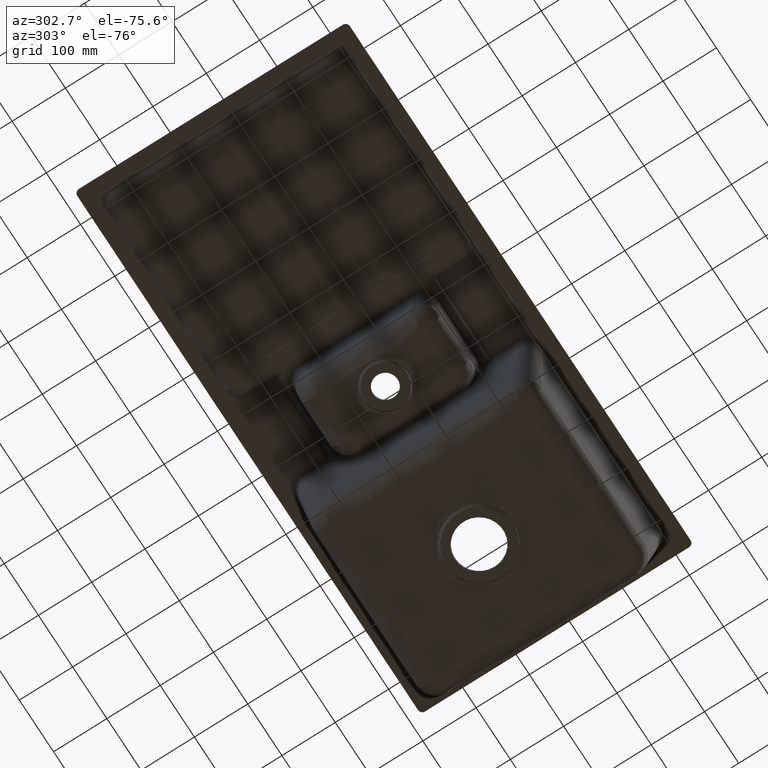
[diagram: clean part render]
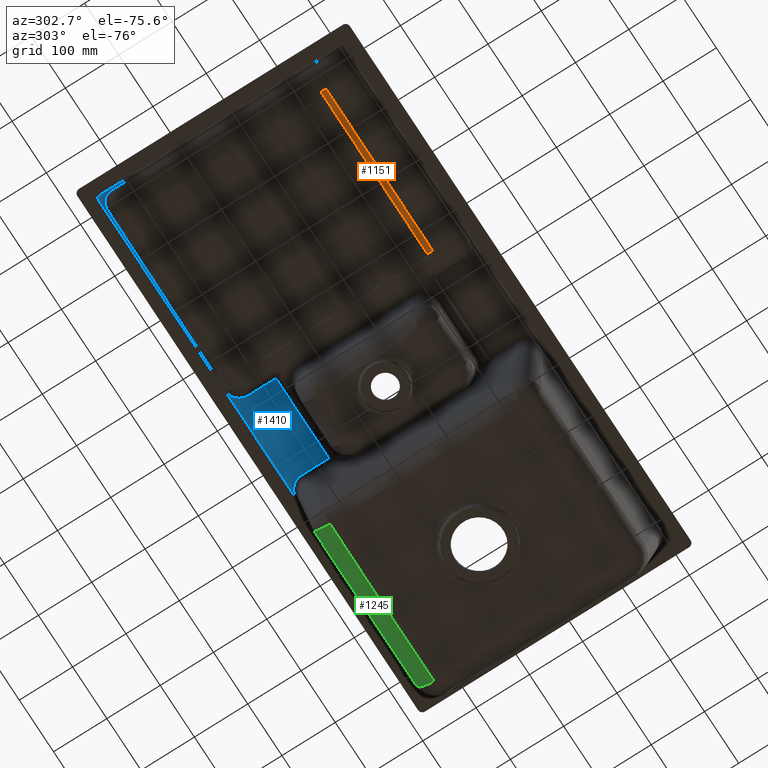
[diagram: same view with three faces highlighted in distinct colors, each labeled with its STEP entity id]
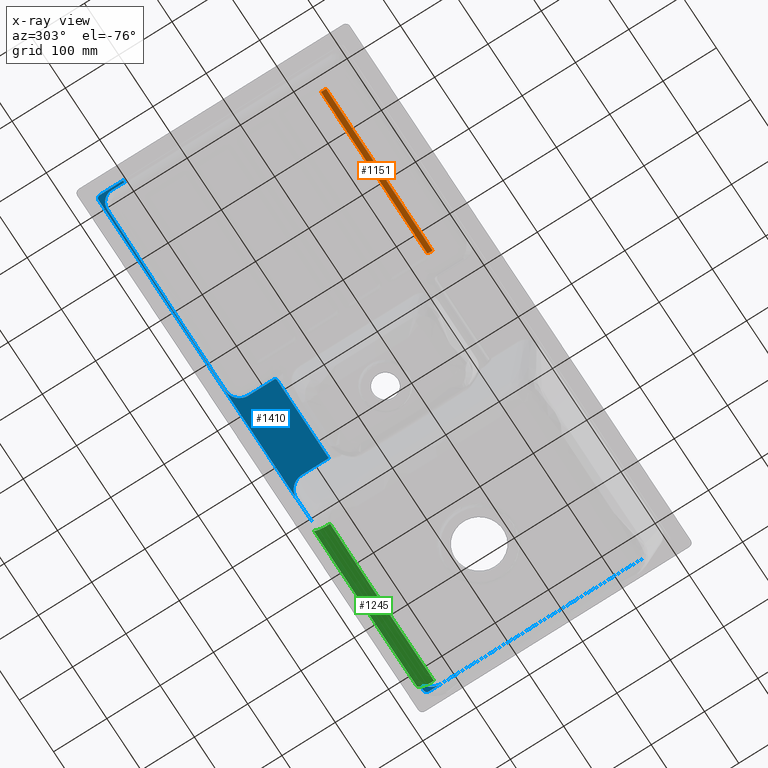
[diagram: x-ray of the same camera — body ghosted, the three highlighted faces saturated]
A machine part, auxiliary view with three faces highlighted in distinct colors.
The next image is the same camera in x-ray (body ghosted, the three faces saturated) — at least one of them is partly hidden behind the body in this view.
Their STEP definitions:

[orange] entity #1151 — the highlighted cylindrical surface (edge-blend (fillet) strip) has radius 21.6 mm, axis along (-0.9997, -0, 0.0227).
#379=FACE_OUTER_BOUND('',#1786,.T.);
#1151=ADVANCED_FACE('',(#379),#1475,.T.);
#1475=CYLINDRICAL_SURFACE('',#6378,21.6);
#1786=EDGE_LOOP('',(#2679,#2680,#2681,#2682));
#2679=ORIENTED_EDGE('',*,*,#4987,.T.);
#2680=ORIENTED_EDGE('',*,*,#4785,.F.);
#2681=ORIENTED_EDGE('',*,*,#4985,.F.);
#2682=ORIENTED_EDGE('',*,*,#4988,.T.);
#4170=VERTEX_POINT('',#9241);
#4171=VERTEX_POINT('',#9270);
#4287=VERTEX_POINT('',#11833);
#4288=VERTEX_POINT('',#11878);
#4785=EDGE_CURVE('',#4170,#4171,#5729,.T.);
#4985=EDGE_CURVE('',#4287,#4170,#5867,.T.);
#4987=EDGE_CURVE('',#4288,#4171,#5869,.T.);
#4988=EDGE_CURVE('',#4287,#4288,#5870,.T.);
#5729=B_SPLINE_CURVE_WITH_KNOTS('',3,(#9271,#9272,#9273,#9274),
 .UNSPECIFIED.,.F.,.F.,(4,4),(0.,1.),.UNSPECIFIED.);
#5867=B_SPLINE_CURVE_WITH_KNOTS('',3,(#11829,#11830,#11831,#11832),
 .UNSPECIFIED.,.F.,.F.,(4,4),(0.,1.),.UNSPECIFIED.);
#5869=B_SPLINE_CURVE_WITH_KNOTS('',3,(#11874,#11875,#11876,#11877),
 .UNSPECIFIED.,.F.,.F.,(4,4),(0.,1.),.UNSPECIFIED.);
#5870=B_SPLINE_CURVE_WITH_KNOTS('',3,(#11879,#11880,#11881,#11882),
 .UNSPECIFIED.,.F.,.F.,(4,4),(0.,1.),.UNSPECIFIED.);
#6378=AXIS2_PLACEMENT_3D('',#11883,#6672,#6673);
#6672=DIRECTION('',(-0.999742609322698,-8.38321196049013E-17,0.0226873335727814));
#6673=DIRECTION('',(-0.0226873335727814,0.,-0.999742609322698));
#9241=CARTESIAN_POINT('',(380.737645721541,94.0123396108543,-28.2993058651331));
#9270=CARTESIAN_POINT('',(69.7376457215418,94.0123396108553,-21.2417285693976));
#9271=CARTESIAN_POINT('',(380.737645721541,94.0123396108553,-28.299305865133));
#9272=CARTESIAN_POINT('',(277.070979054875,94.0123396108553,-25.9467800998879));
#9273=CARTESIAN_POINT('',(173.404312388208,94.0123396108553,-23.5942543346428));
#9274=CARTESIAN_POINT('',(69.7376457215418,94.0123396108553,-21.2417285693978));
#11829=CARTESIAN_POINT('',(380.682377329981,84.0471721683448,-30.7347690637838));
#11830=CARTESIAN_POINT('',(380.682377329981,87.4996916583293,-30.7347690637835));
#11831=CARTESIAN_POINT('',(380.701508858915,90.949202018236,-29.8917169441491));
#11832=CARTESIAN_POINT('',(380.737645721541,94.0123396108539,-28.2993058651326));
#11833=CARTESIAN_POINT('',(380.682377329981,84.0471721683444,-30.7347690637838));
#11874=CARTESIAN_POINT('',(69.682377329981,84.0471721683447,-23.6771917680485));
#11875=CARTESIAN_POINT('',(69.682377329981,87.4996916583298,-23.6771917680485));
#11876=CARTESIAN_POINT('',(69.7015088589156,90.949202018237,-22.8341396484143));
#11877=CARTESIAN_POINT('',(69.7376457215418,94.0123396108553,-21.2417285693977));
#11878=CARTESIAN_POINT('',(69.6823773299811,84.0471721683445,-23.6771917680485));
#11879=CARTESIAN_POINT('',(380.682377329981,84.0471721683447,-30.7347690637838));
#11880=CARTESIAN_POINT('',(277.015710663314,84.0471721683447,-28.3822432985387));
#11881=CARTESIAN_POINT('',(173.349043996648,84.0471721683447,-26.0297175332936));
#11882=CARTESIAN_POINT('',(69.682377329981,84.0471721683447,-23.6771917680485));
#11883=CARTESIAN_POINT('',(60.1043617344349,84.0471721683447,-1.85427511796978));

[blue] entity #1410 — the highlighted planar face has unit normal (0, 0, -1).
#635=FACE_OUTER_BOUND('',#2054,.T.);
#906=(
BOUNDED_CURVE()
B_SPLINE_CURVE(3,(#18507,#18508,#18509,#18510,#18511,#18512,#18513,#18514,
#18515,#18516,#18517,#18518),.UNSPECIFIED.,.F.,.F.)
B_SPLINE_CURVE_WITH_KNOTS((4,2,2,2,2,4),(0.,0.25,0.5,0.625,0.75,1.),
 .UNSPECIFIED.)
CURVE()
GEOMETRIC_REPRESENTATION_ITEM()
RATIONAL_B_SPLINE_CURVE((1.,1.,1.,1.,1.,1.,1.,1.,1.,1.,1.,1.))
REPRESENTATION_ITEM('')
);
#908=(
BOUNDED_CURVE()
B_SPLINE_CURVE(3,(#18559,#18560,#18561,#18562),.UNSPECIFIED.,.F.,.F.)
B_SPLINE_CURVE_WITH_KNOTS((4,4),(0.,1.),.UNSPECIFIED.)
CURVE()
GEOMETRIC_REPRESENTATION_ITEM()
RATIONAL_B_SPLINE_CURVE((1.,1.,1.,1.))
REPRESENTATION_ITEM('')
);
#910=(
BOUNDED_CURVE()
B_SPLINE_CURVE(3,(#18579,#18580,#18581,#18582),.UNSPECIFIED.,.F.,.F.)
B_SPLINE_CURVE_WITH_KNOTS((4,4),(0.,1.),.UNSPECIFIED.)
CURVE()
GEOMETRIC_REPRESENTATION_ITEM()
RATIONAL_B_SPLINE_CURVE((1.,1.,1.,1.))
REPRESENTATION_ITEM('')
);
#912=(
BOUNDED_CURVE()
B_SPLINE_CURVE(3,(#18599,#18600,#18601,#18602,#18603,#18604,#18605,#18606,
#18607,#18608,#18609,#18610),.UNSPECIFIED.,.F.,.F.)
B_SPLINE_CURVE_WITH_KNOTS((4,2,2,2,2,4),(0.,0.25,0.5,0.625,0.75,1.),
 .UNSPECIFIED.)
CURVE()
GEOMETRIC_REPRESENTATION_ITEM()
RATIONAL_B_SPLINE_CURVE((1.,1.,1.,1.,1.,1.,1.,1.,1.,1.,1.,1.))
REPRESENTATION_ITEM('')
);
#915=(
BOUNDED_CURVE()
B_SPLINE_CURVE(3,(#19028,#19029,#19030,#19031),.UNSPECIFIED.,.F.,.F.)
B_SPLINE_CURVE_WITH_KNOTS((4,4),(0.,1.),.UNSPECIFIED.)
CURVE()
GEOMETRIC_REPRESENTATION_ITEM()
RATIONAL_B_SPLINE_CURVE((1.,1.,1.,1.))
REPRESENTATION_ITEM('')
);
#917=(
BOUNDED_CURVE()
B_SPLINE_CURVE(3,(#19058,#19059,#19060,#19061),.UNSPECIFIED.,.F.,.F.)
B_SPLINE_CURVE_WITH_KNOTS((4,4),(0.,1.),.UNSPECIFIED.)
CURVE()
GEOMETRIC_REPRESENTATION_ITEM()
RATIONAL_B_SPLINE_CURVE((1.,1.,1.,1.))
REPRESENTATION_ITEM('')
);
#919=(
BOUNDED_CURVE()
B_SPLINE_CURVE(3,(#19095,#19096,#19097,#19098,#19099,#19100,#19101,#19102,
#19103,#19104,#19105,#19106,#19107,#19108),.UNSPECIFIED.,.F.,.F.)
B_SPLINE_CURVE_WITH_KNOTS((4,2,2,2,2,2,4),(0.,0.25,0.375,0.5,0.625,0.75,
1.),.UNSPECIFIED.)
CURVE()
GEOMETRIC_REPRESENTATION_ITEM()
RATIONAL_B_SPLINE_CURVE((1.,1.,1.,1.,1.,1.,1.,1.,1.,1.,1.,1.,1.,1.))
REPRESENTATION_ITEM('')
);
#921=(
BOUNDED_CURVE()
B_SPLINE_CURVE(3,(#19167,#19168,#19169,#19170,#19171,#19172,#19173,#19174,
#19175,#19176,#19177,#19178,#19179,#19180),.UNSPECIFIED.,.F.,.F.)
B_SPLINE_CURVE_WITH_KNOTS((4,2,2,2,2,2,4),(0.,0.25,0.375,0.5,0.625,0.75,
1.),.UNSPECIFIED.)
CURVE()
GEOMETRIC_REPRESENTATION_ITEM()
RATIONAL_B_SPLINE_CURVE((1.,1.,1.,1.,1.,1.,1.,1.,1.,1.,1.,1.,1.,1.))
REPRESENTATION_ITEM('')
);
#999=PLANE('',#6494);
#1410=ADVANCED_FACE('',(#635),#999,.T.);
#2054=EDGE_LOOP('',(#3865,#3866,#3867,#3868,#3869,#3870,#3871,#3872,#3873,
#3874,#3875,#3876,#3877,#3878,#3879,#3880,#3881,#3882,#3883,#3884,#3885,
#3886,#3887,#3888,#3889,#3890));
#3865=ORIENTED_EDGE('',*,*,#5552,.T.);
#3866=ORIENTED_EDGE('',*,*,#5553,.T.);
#3867=ORIENTED_EDGE('',*,*,#5554,.T.);
#3868=ORIENTED_EDGE('',*,*,#5555,.T.);
#3869=ORIENTED_EDGE('',*,*,#5556,.T.);
#3870=ORIENTED_EDGE('',*,*,#5477,.F.);
#3871=ORIENTED_EDGE('',*,*,#5468,.F.);
#3872=ORIENTED_EDGE('',*,*,#5466,.F.);
#3873=ORIENTED_EDGE('',*,*,#5464,.F.);
#3874=ORIENTED_EDGE('',*,*,#5462,.F.);
#3875=ORIENTED_EDGE('',*,*,#5460,.F.);
#3876=ORIENTED_EDGE('',*,*,#5459,.F.);
#3877=ORIENTED_EDGE('',*,*,#5457,.F.);
#3878=ORIENTED_EDGE('',*,*,#5455,.F.);
#3879=ORIENTED_EDGE('',*,*,#5453,.F.);
#3880=ORIENTED_EDGE('',*,*,#5451,.F.);
#3881=ORIENTED_EDGE('',*,*,#5449,.F.);
#3882=ORIENTED_EDGE('',*,*,#5448,.F.);
#3883=ORIENTED_EDGE('',*,*,#5447,.F.);
#3884=ORIENTED_EDGE('',*,*,#5444,.F.);
#3885=ORIENTED_EDGE('',*,*,#5442,.F.);
#3886=ORIENTED_EDGE('',*,*,#5440,.F.);
#3887=ORIENTED_EDGE('',*,*,#5438,.F.);
#3888=ORIENTED_EDGE('',*,*,#5474,.F.);
#3889=ORIENTED_EDGE('',*,*,#5549,.F.);
#3890=ORIENTED_EDGE('',*,*,#5557,.T.);
#4475=VERTEX_POINT('',#16237);
#4478=VERTEX_POINT('',#16328);
#4484=VERTEX_POINT('',#16818);
#4535=VERTEX_POINT('',#18506);
#4536=VERTEX_POINT('',#18519);
#4537=VERTEX_POINT('',#18563);
#4538=VERTEX_POINT('',#18583);
#4539=VERTEX_POINT('',#18611);
#4540=VERTEX_POINT('',#18655);
#4541=VERTEX_POINT('',#18859);
#4542=VERTEX_POINT('',#19018);
#4543=VERTEX_POINT('',#19027);
#4544=VERTEX_POINT('',#19048);
#4545=VERTEX_POINT('',#19057);
#4546=VERTEX_POINT('',#19085);
#4547=VERTEX_POINT('',#19094);
#4548=VERTEX_POINT('',#19157);
#4549=VERTEX_POINT('',#19166);
#4553=VERTEX_POINT('',#19288);
#4554=VERTEX_POINT('',#19298);
#4592=VERTEX_POINT('',#20482);
#4594=VERTEX_POINT('',#20499);
#4595=VERTEX_POINT('',#20500);
#4596=VERTEX_POINT('',#20505);
#4597=VERTEX_POINT('',#20512);
#4598=VERTEX_POINT('',#20517);
#5438=EDGE_CURVE('',#4535,#4536,#906,.T.);
#5440=EDGE_CURVE('',#4536,#4537,#908,.T.);
#5442=EDGE_CURVE('',#4537,#4538,#910,.T.);
#5444=EDGE_CURVE('',#4538,#4539,#912,.T.);
#5447=EDGE_CURVE('',#4539,#4540,#6171,.T.);
#5448=EDGE_CURVE('',#4540,#4475,#6172,.T.);
#5449=EDGE_CURVE('',#4475,#4478,#6173,.T.);
#5451=EDGE_CURVE('',#4478,#4541,#6175,.T.);
#5453=EDGE_CURVE('',#4541,#4542,#6177,.T.);
#5455=EDGE_CURVE('',#4542,#4543,#915,.T.);
#5457=EDGE_CURVE('',#4543,#4544,#6179,.T.);
#5459=EDGE_CURVE('',#4544,#4545,#917,.T.);
#5460=EDGE_CURVE('',#4545,#4484,#6180,.T.);
#5462=EDGE_CURVE('',#4484,#4546,#6182,.T.);
#5464=EDGE_CURVE('',#4546,#4547,#919,.T.);
#5466=EDGE_CURVE('',#4547,#4548,#6184,.T.);
#5468=EDGE_CURVE('',#4548,#4549,#921,.T.);
#5474=EDGE_CURVE('',#4553,#4535,#6187,.T.);
#5477=EDGE_CURVE('',#4549,#4554,#6190,.T.);
#5549=EDGE_CURVE('',#4592,#4553,#6242,.T.);
#5552=EDGE_CURVE('',#4594,#4595,#6245,.T.);
#5553=EDGE_CURVE('',#4595,#4596,#6246,.T.);
#5554=EDGE_CURVE('',#4596,#4597,#6247,.T.);
#5555=EDGE_CURVE('',#4597,#4598,#6248,.T.);
#5556=EDGE_CURVE('',#4598,#4554,#6249,.T.);
#5557=EDGE_CURVE('',#4592,#4594,#6250,.T.);
#6171=B_SPLINE_CURVE_WITH_KNOTS('',3,(#18656,#18657,#18658,#18659),
 .UNSPECIFIED.,.F.,.F.,(4,4),(0.,1.),.UNSPECIFIED.);
#6172=B_SPLINE_CURVE_WITH_KNOTS('',3,(#18661,#18662,#18663,#18664,#18665,
#18666),.UNSPECIFIED.,.F.,.F.,(4,2,4),(0.,0.5,1.),.UNSPECIFIED.);
#6173=B_SPLINE_CURVE_WITH_KNOTS('',3,(#18799,#18800,#18801,#18802,#18803,
#18804,#18805,#18806),.UNSPECIFIED.,.F.,.F.,(4,2,2,4),(0.,0.499531666610808,
0.752941051288972,1.),.UNSPECIFIED.);
#6175=B_SPLINE_CURVE_WITH_KNOTS('',3,(#18860,#18861,#18862,#18863,#18864,
#18865,#18866,#18867,#18868,#18869,#18870,#18871,#18872,#18873,#18874,#18875,
#18876,#18877,#18878,#18879,#18880,#18881),.UNSPECIFIED.,.F.,.F.,(4,2,2,
2,2,2,2,2,2,2,4),(0.,0.00981383962672618,0.0256285147998721,0.057257865146164,
0.120516565838748,0.247033967223915,0.373551368609083,0.50006876999425,
0.753103572764585,0.879620974149753,1.),.UNSPECIFIED.);
#6177=B_SPLINE_CURVE_WITH_KNOTS('',3,(#19019,#19020,#19021,#19022),
 .UNSPECIFIED.,.F.,.F.,(4,4),(0.,1.),.UNSPECIFIED.);
#6179=B_SPLINE_CURVE_WITH_KNOTS('',3,(#19049,#19050,#19051,#19052),
 .UNSPECIFIED.,.F.,.F.,(4,4),(0.,1.),.UNSPECIFIED.);
#6180=B_SPLINE_CURVE_WITH_KNOTS('',3,(#19074,#19075,#19076,#19077),
 .UNSPECIFIED.,.F.,.F.,(4,4),(0.,1.),.UNSPECIFIED.);
#6182=B_SPLINE_CURVE_WITH_KNOTS('',3,(#19086,#19087,#19088,#19089),
 .UNSPECIFIED.,.F.,.F.,(4,4),(0.,1.),.UNSPECIFIED.);
#6184=B_SPLINE_CURVE_WITH_KNOTS('',3,(#19158,#19159,#19160,#19161),
 .UNSPECIFIED.,.F.,.F.,(4,4),(0.,1.),.UNSPECIFIED.);
#6187=B_SPLINE_CURVE_WITH_KNOTS('',3,(#19289,#19290,#19291,#19292),
 .UNSPECIFIED.,.F.,.F.,(4,4),(0.,1.),.UNSPECIFIED.);
#6190=B_SPLINE_CURVE_WITH_KNOTS('',3,(#19306,#19307,#19308,#19309),
 .UNSPECIFIED.,.F.,.F.,(4,4),(0.,1.),.UNSPECIFIED.);
#6242=B_SPLINE_CURVE_WITH_KNOTS('',3,(#20478,#20479,#20480,#20481),
 .UNSPECIFIED.,.F.,.F.,(4,4),(0.,1.),.UNSPECIFIED.);
#6245=B_SPLINE_CURVE_WITH_KNOTS('',3,(#20493,#20494,#20495,#20496,#20497,
#20498),.UNSPECIFIED.,.F.,.F.,(4,2,4),(0.,0.5,1.),.UNSPECIFIED.);
#6246=B_SPLINE_CURVE_WITH_KNOTS('',3,(#20501,#20502,#20503,#20504),
 .UNSPECIFIED.,.F.,.F.,(4,4),(0.,1.),.UNSPECIFIED.);
#6247=B_SPLINE_CURVE_WITH_KNOTS('',3,(#20506,#20507,#20508,#20509,#20510,
#20511),.UNSPECIFIED.,.F.,.F.,(4,2,4),(0.,0.5,1.),.UNSPECIFIED.);
#6248=B_SPLINE_CURVE_WITH_KNOTS('',3,(#20513,#20514,#20515,#20516),
 .UNSPECIFIED.,.F.,.F.,(4,4),(0.,1.),.UNSPECIFIED.);
#6249=B_SPLINE_CURVE_WITH_KNOTS('',3,(#20518,#20519,#20520,#20521),
 .UNSPECIFIED.,.F.,.F.,(4,4),(0.,1.),.UNSPECIFIED.);
#6250=B_SPLINE_CURVE_WITH_KNOTS('',3,(#20522,#20523,#20524,#20525),
 .UNSPECIFIED.,.F.,.F.,(4,4),(0.,1.),.UNSPECIFIED.);
#6494=AXIS2_PLACEMENT_3D('',#20526,#6904,#6905);
#6904=DIRECTION('',(0.,0.,-1.));
#6905=DIRECTION('',(1.,0.,0.));
#16237=CARTESIAN_POINT('',(426.996936650795,407.59692249292,-14.0000004603992));
#16328=CARTESIAN_POINT('',(427.250875773407,407.428179293239,-14.0000004895497));
#16818=CARTESIAN_POINT('',(580.422370041704,406.968279679282,-14.));
#18506=CARTESIAN_POINT('',(27.7921375442032,459.399144826488,-14.));
#18507=CARTESIAN_POINT('',(27.792137544203,459.399144826488,-14.));
#18508=CARTESIAN_POINT('',(27.7921375458228,462.391913961438,-14.));
#18509=CARTESIAN_POINT('',(28.3887031620947,465.382884747067,-14.));
#18510=CARTESIAN_POINT('',(30.6424925174326,470.855142818542,-14.));
#18511=CARTESIAN_POINT('',(32.3261107624654,473.393509504945,-14.));
#18512=CARTESIAN_POINT('',(35.4596181334744,476.549368907805,-14.));
#18513=CARTESIAN_POINT('',(36.6255569380276,477.513260030559,-14.));
#18514=CARTESIAN_POINT('',(39.086877408762,479.170503021697,-14.));
#18515=CARTESIAN_POINT('',(40.3884671807572,479.873817932367,-14.));
#18516=CARTESIAN_POINT('',(44.508116327804,481.604148485478,-14.));
#18517=CARTESIAN_POINT('',(47.4751360363725,482.211145754198,-14.));
#18518=CARTESIAN_POINT('',(50.4485053148178,482.234489919863,-14.));
#18519=CARTESIAN_POINT('',(50.4485053148177,482.234489919863,-14.));
#18559=CARTESIAN_POINT('',(50.4485053148176,482.234489919863,-14.));
#18560=CARTESIAN_POINT('',(129.270090317085,482.853324615719,-14.));
#18561=CARTESIAN_POINT('',(208.091726374771,483.466090229834,-14.));
#18562=CARTESIAN_POINT('',(286.912971778672,484.127368384841,-14.));
#18563=CARTESIAN_POINT('',(286.912971778671,484.127368384841,-14.));
#18579=CARTESIAN_POINT('',(286.91297177867,484.127368384841,-14.));
#18580=CARTESIAN_POINT('',(323.367026040415,484.433203065003,-14.));
#18581=CARTESIAN_POINT('',(361.171065995138,484.695647545562,-13.9999999999993));
#18582=CARTESIAN_POINT('',(400.044137417339,484.909341763988,-14.));
#18583=CARTESIAN_POINT('',(400.044137417338,484.909341763988,-14.));
#18599=CARTESIAN_POINT('',(400.044137417338,484.909341763988,-14.));
#18600=CARTESIAN_POINT('',(403.439895631852,484.928009027515,-14.));
#18601=CARTESIAN_POINT('',(406.847631313913,484.25901643297,-14.));
#18602=CARTESIAN_POINT('',(413.068569061348,481.705603166345,-14.));
#18603=CARTESIAN_POINT('',(415.954241098094,479.790119018903,-14.));
#18604=CARTESIAN_POINT('',(419.534136595772,476.226451362713,-14.));
#18605=CARTESIAN_POINT('',(420.626894855622,474.900072168602,-14.));
#18606=CARTESIAN_POINT('',(422.504751471745,472.096717998548,-14.));
#18607=CARTESIAN_POINT('',(423.299457694204,470.615113097837,-14.));
#18608=CARTESIAN_POINT('',(425.247411699899,465.928576134585,-14.));
#18609=CARTESIAN_POINT('',(425.920583684488,462.548430763765,-14.));
#18610=CARTESIAN_POINT('',(425.920583685519,459.170706450066,-14.));
#18611=CARTESIAN_POINT('',(425.920583685519,459.170706450066,-14.));
#18655=CARTESIAN_POINT('',(425.920300896191,410.663310951617,-14.0000008786424));
#18656=CARTESIAN_POINT('',(425.920583685519,459.170706450066,-14.));
#18657=CARTESIAN_POINT('',(425.920583685519,443.00152992862,-14.));
#18658=CARTESIAN_POINT('',(425.920583685519,426.832353407174,-14.));
#18659=CARTESIAN_POINT('',(425.920583685519,410.663176885728,-14.));
#18661=CARTESIAN_POINT('',(425.920018476412,410.663176885797,-14.0000028161692));
#18662=CARTESIAN_POINT('',(425.920903575424,410.097489288354,-14.0000028136558));
#18663=CARTESIAN_POINT('',(425.956040746824,409.53462896446,-14.0000028019535));
#18664=CARTESIAN_POINT('',(426.225622151102,408.431143945238,-14.0000018209474));
#18665=CARTESIAN_POINT('',(426.547115479204,407.943068410148,-14.0000017570889));
#18666=CARTESIAN_POINT('',(426.996936650914,407.59692249316,-14.0000018416023));
#18799=CARTESIAN_POINT('',(426.996936735057,407.59692260797,-14.));
#18800=CARTESIAN_POINT('',(427.037914597177,407.566916788034,-14.));
#18801=CARTESIAN_POINT('',(427.079339981285,407.537509767668,-14.));
#18802=CARTESIAN_POINT('',(427.143115503641,407.495169453265,-14.));
#18803=CARTESIAN_POINT('',(427.164765883289,407.481191056454,-14.));
#18804=CARTESIAN_POINT('',(427.207884839121,407.454175286661,-14.));
#18805=CARTESIAN_POINT('',(427.22931370047,407.441069161435,-14.));
#18806=CARTESIAN_POINT('',(427.250875773365,407.42817929316,-14.));
#18859=CARTESIAN_POINT('',(429.636772806419,406.9679067702,-14.0000009781584));
#18860=CARTESIAN_POINT('',(427.250874077834,407.42817641157,-14.0000019588262));
#18861=CARTESIAN_POINT('',(427.257829114779,407.424084081307,-14.0000019599657));
#18862=CARTESIAN_POINT('',(427.264784309217,407.419992023541,-14.0000019609416));
#18863=CARTESIAN_POINT('',(427.282931823525,407.409278795213,-14.0000019624375));
#18864=CARTESIAN_POINT('',(427.294103954252,407.402622869615,-14.0000019681936));
#18865=CARTESIAN_POINT('',(427.327963006188,407.383242303595,-14.0000019871869));
#18866=CARTESIAN_POINT('',(427.350742068923,407.370675725714,-14.0000019944093));
#18867=CARTESIAN_POINT('',(427.41963036361,407.333920132642,-14.0000020276293));
#18868=CARTESIAN_POINT('',(427.466348854101,407.310877603267,-14.000002053545));
#18869=CARTESIAN_POINT('',(427.607753765969,407.246548428449,-14.0000021365287));
#18870=CARTESIAN_POINT('',(427.704058743811,407.209789637096,-14.0000022014998));
#18871=CARTESIAN_POINT('',(427.900649350624,407.148257421425,-14.0000023522364));
#18872=CARTESIAN_POINT('',(428.001335914734,407.124690905985,-14.0000024564244));
#18873=CARTESIAN_POINT('',(428.205154249318,407.084922023843,-14.0000025758866));
#18874=CARTESIAN_POINT('',(428.307599535786,407.067601472562,-14.0000026226721));
#18875=CARTESIAN_POINT('',(428.615565303385,407.022298983051,-14.0000027567785));
#18876=CARTESIAN_POINT('',(428.822297329569,407.001044302842,-14.0000028240964));
#18877=CARTESIAN_POINT('',(429.133065388244,406.980401603916,-14.0000028908237));
#18878=CARTESIAN_POINT('',(429.236731574744,406.975402525112,-14.0000029074048));
#18879=CARTESIAN_POINT('',(429.43917336728,406.969053725591,-14.0000029288181));
#18880=CARTESIAN_POINT('',(429.537947717763,406.967671237532,-14.0000029337889));
#18881=CARTESIAN_POINT('',(429.636772740932,406.967533863957,-14.0000029344568));
#19018=CARTESIAN_POINT('',(446.789472390778,406.968279679282,-14.));
#19019=CARTESIAN_POINT('',(429.636772853089,406.968279679282,-14.));
#19020=CARTESIAN_POINT('',(435.354339365652,406.968279679282,-14.));
#19021=CARTESIAN_POINT('',(441.071905878215,406.968279679282,-14.));
#19022=CARTESIAN_POINT('',(446.789472390778,406.968279679282,-14.));
#19027=CARTESIAN_POINT('',(451.992879876291,406.971441294365,-14.));
#19028=CARTESIAN_POINT('',(446.789472390778,406.968279679282,-14.));
#19029=CARTESIAN_POINT('',(448.523942052848,406.968279679475,-14.));
#19030=CARTESIAN_POINT('',(450.25840993324,406.971441294509,-14.));
#19031=CARTESIAN_POINT('',(451.992879876291,406.971441294365,-14.));
#19048=CARTESIAN_POINT('',(566.007120123152,406.971441294365,-14.));
#19049=CARTESIAN_POINT('',(451.992879876291,406.971441294365,-14.));
#19050=CARTESIAN_POINT('',(489.997626625245,406.971441294365,-14.));
#19051=CARTESIAN_POINT('',(528.002373374198,406.971441294365,-14.));
#19052=CARTESIAN_POINT('',(566.007120123152,406.971441294365,-14.));
#19057=CARTESIAN_POINT('',(571.210527608794,406.968279679282,-14.));
#19058=CARTESIAN_POINT('',(566.007120123152,406.971441294365,-14.));
#19059=CARTESIAN_POINT('',(567.741590066245,406.971441294365,-14.));
#19060=CARTESIAN_POINT('',(569.476057946682,406.968279679667,-14.));
#19061=CARTESIAN_POINT('',(571.210527608794,406.968279679282,-14.));
#19074=CARTESIAN_POINT('',(571.210527608794,406.968279679282,-14.));
#19075=CARTESIAN_POINT('',(574.281141753097,406.968279679282,-14.));
#19076=CARTESIAN_POINT('',(577.351755897401,406.968279679282,-14.));
#19077=CARTESIAN_POINT('',(580.422370041704,406.968279679282,-14.));
#19085=CARTESIAN_POINT('',(580.422370041704,457.553066531176,-14.));
#19086=CARTESIAN_POINT('',(580.422370041704,406.968279679282,-14.));
#19087=CARTESIAN_POINT('',(580.422370041704,423.82987529658,-14.));
#19088=CARTESIAN_POINT('',(580.422370041704,440.691470913878,-14.));
#19089=CARTESIAN_POINT('',(580.422370041704,457.553066531176,-14.));
#19094=CARTESIAN_POINT('',(608.446933468824,485.577629958296,-14.));
#19095=CARTESIAN_POINT('',(580.422370041704,457.553066531176,-14.0000000000001));
#19096=CARTESIAN_POINT('',(580.422370041909,461.24247078844,-14.0000000000001));
#19097=CARTESIAN_POINT('',(581.151604579828,464.940250245784,-14.));
#19098=CARTESIAN_POINT('',(583.235730360213,470.00793044533,-14.));
#19099=CARTESIAN_POINT('',(584.103599809602,471.64361533929,-14.));
#19100=CARTESIAN_POINT('',(586.147603395433,474.71031366969,-14.));
#19101=CARTESIAN_POINT('',(587.306992247224,476.12237521049,-13.9999999999997));
#19102=CARTESIAN_POINT('',(589.895333298353,478.708523204888,-13.9999999999997));
#19103=CARTESIAN_POINT('',(591.341108865842,479.890763650287,-14.));
#19104=CARTESIAN_POINT('',(594.39227989923,481.916112927919,-14.));
#19105=CARTESIAN_POINT('',(596.005150032348,482.771505579762,-14.));
#19106=CARTESIAN_POINT('',(601.106668469317,484.863937977332,-14.));
#19107=CARTESIAN_POINT('',(604.777945704616,485.577629958296,-14.));
#19108=CARTESIAN_POINT('',(608.446933468824,485.577629958296,-14.));
#19157=CARTESIAN_POINT('',(957.553066517147,485.577629958296,-14.));
#19158=CARTESIAN_POINT('',(608.446933468824,485.577629958296,-14.));
#19159=CARTESIAN_POINT('',(724.815644484932,485.577629958296,-14.));
#19160=CARTESIAN_POINT('',(841.184355501039,485.577629958296,-14.));
#19161=CARTESIAN_POINT('',(957.553066517147,485.577629958296,-14.));
#19166=CARTESIAN_POINT('',(985.577629958296,457.553066517148,-14.));
#19167=CARTESIAN_POINT('',(957.553066517147,485.577629958296,-14.));
#19168=CARTESIAN_POINT('',(961.242470776568,485.577629957989,-14.));
#19169=CARTESIAN_POINT('',(964.940250235168,484.848395419352,-14.));
#19170=CARTESIAN_POINT('',(970.007930437942,482.764269638954,-14.));
#19171=CARTESIAN_POINT('',(971.643615332819,481.896400188897,-14.));
#19172=CARTESIAN_POINT('',(974.710313664363,479.85239660203,-14.));
#19173=CARTESIAN_POINT('',(976.122375206575,478.693007749748,-14.));
#19174=CARTESIAN_POINT('',(978.708523201388,476.104666697189,-14.));
#19175=CARTESIAN_POINT('',(979.890763647797,474.658891128864,-13.9999999999999));
#19176=CARTESIAN_POINT('',(981.916112926448,471.607720094145,-13.9999999999999));
#19177=CARTESIAN_POINT('',(982.77150557833,469.994849960033,-14.0000000000001));
#19178=CARTESIAN_POINT('',(984.863937977738,464.893331520452,-14.0000000000001));
#19179=CARTESIAN_POINT('',(985.577629957482,461.222054283191,-13.9999999999999));
#19180=CARTESIAN_POINT('',(985.577629958296,457.553066517147,-13.9999999999999));
#19288=CARTESIAN_POINT('',(27.7921375442033,435.699268119435,-14.));
#19289=CARTESIAN_POINT('',(27.7921375442033,435.699268119435,-14.));
#19290=CARTESIAN_POINT('',(27.7921375442033,443.599227021786,-14.));
#19291=CARTESIAN_POINT('',(27.7921375442033,451.499185924137,-14.));
#19292=CARTESIAN_POINT('',(27.7921375442033,459.399144826488,-14.));
#19298=CARTESIAN_POINT('',(985.577629958296,74.300731880565,-14.));
#19306=CARTESIAN_POINT('',(985.577629958296,457.553066517148,-14.));
#19307=CARTESIAN_POINT('',(985.577629958296,329.802288304954,-14.));
#19308=CARTESIAN_POINT('',(985.577629958296,202.051510092759,-14.));
#19309=CARTESIAN_POINT('',(985.577629958296,74.300731880565,-14.));
#20478=CARTESIAN_POINT('',(24.3007318805649,435.699268119435,-14.));
#20479=CARTESIAN_POINT('',(25.4645337684444,435.699268119435,-14.));
#20480=CARTESIAN_POINT('',(26.6283356563238,435.699268119435,-14.));
#20481=CARTESIAN_POINT('',(27.7921375442033,435.699268119435,-14.));
#20482=CARTESIAN_POINT('',(24.3007318805649,435.699268119435,-14.));
#20493=CARTESIAN_POINT('',(24.3007318805649,479.699268119435,-14.));
#20494=CARTESIAN_POINT('',(24.3007318805649,481.291227191001,-14.));
#20495=CARTESIAN_POINT('',(24.9335927755019,482.817767501257,-14.));
#20496=CARTESIAN_POINT('',(27.1825896113893,485.066050111852,-14.));
#20497=CARTESIAN_POINT('',(28.7100935803368,485.699268119435,-14.));
#20498=CARTESIAN_POINT('',(30.3007318805649,485.699268119435,-14.));
#20499=CARTESIAN_POINT('',(24.3007318805649,479.699268119435,-14.));
#20500=CARTESIAN_POINT('',(30.3007318805649,485.699268119435,-14.));
#20501=CARTESIAN_POINT('',(30.3007318805649,485.699268119435,-14.));
#20502=CARTESIAN_POINT('',(346.766910626855,485.699268119435,-14.));
#20503=CARTESIAN_POINT('',(663.233089373145,485.699268119435,-14.));
#20504=CARTESIAN_POINT('',(979.699268119435,485.699268119435,-14.));
#20505=CARTESIAN_POINT('',(979.699268119435,485.699268119435,-14.));
#20506=CARTESIAN_POINT('',(979.699268119435,485.699268119435,-14.));
#20507=CARTESIAN_POINT('',(981.291227190843,485.699268119435,-14.));
#20508=CARTESIAN_POINT('',(982.817767501224,485.066407224577,-14.));
#20509=CARTESIAN_POINT('',(985.066050111885,482.817410388531,-14.));
#20510=CARTESIAN_POINT('',(985.699268119435,481.28990641971,-14.));
#20511=CARTESIAN_POINT('',(985.699268119435,479.699268119435,-14.));
#20512=CARTESIAN_POINT('',(985.699268119435,479.699268119435,-14.));
#20513=CARTESIAN_POINT('',(985.699268119435,479.699268119435,-14.));
#20514=CARTESIAN_POINT('',(985.699268119435,344.566422706478,-14.));
#20515=CARTESIAN_POINT('',(985.699268119435,209.433577293522,-14.));
#20516=CARTESIAN_POINT('',(985.699268119435,74.300731880565,-14.));
#20517=CARTESIAN_POINT('',(985.699268119435,74.300731880565,-14.));
#20518=CARTESIAN_POINT('',(985.699268119435,74.300731880565,-14.));
#20519=CARTESIAN_POINT('',(985.658722065722,74.300731880565,-14.));
#20520=CARTESIAN_POINT('',(985.618176012009,74.300731880565,-14.));
#20521=CARTESIAN_POINT('',(985.577629958296,74.300731880565,-14.));
#20522=CARTESIAN_POINT('',(24.3007318805649,435.699268119435,-14.));
#20523=CARTESIAN_POINT('',(24.3007318805649,450.365934786102,-14.));
#20524=CARTESIAN_POINT('',(24.3007318805649,465.032601452768,-14.));
#20525=CARTESIAN_POINT('',(24.3007318805649,479.699268119435,-14.));
#20526=CARTESIAN_POINT('',(985.699268119435,485.699268119435,-14.));

[green] entity #1245 — the highlighted face is a freeform B-spline surface patch.
#190=(
BOUNDED_SURFACE()
B_SPLINE_SURFACE(3,2,((#14500,#14501,#14502),(#14503,#14504,#14505),(#14506,
#14507,#14508),(#14509,#14510,#14511),(#14512,#14513,#14514),(#14515,#14516,
#14517),(#14518,#14519,#14520),(#14521,#14522,#14523),(#14524,#14525,#14526),
(#14527,#14528,#14529)),.UNSPECIFIED.,.F.,.F.,.F.)
B_SPLINE_SURFACE_WITH_KNOTS((4,2,2,2,4),(3,3),(0.,0.25,0.5,0.75,1.),(0.,
1.),.UNSPECIFIED.)
GEOMETRIC_REPRESENTATION_ITEM()
RATIONAL_B_SPLINE_SURFACE(((1.,0.755079431376986,1.),(1.,0.756272042316288,
1.),(1.,0.757590618480473,1.),(1.,0.759683862438646,1.),(1.,0.760406461323854,
1.),(1.,0.76040546932212,1.),(1.,0.759682122572023,1.),(1.,0.757589583954994,
1.),(1.,0.756271899995807,1.),(1.,0.755079431384055,1.)))
REPRESENTATION_ITEM('')
SURFACE()
);
#472=FACE_OUTER_BOUND('',#1881,.T.);
#833=(
BOUNDED_CURVE()
B_SPLINE_CURVE(2,(#14486,#14487,#14488),.UNSPECIFIED.,.F.,.F.)
B_SPLINE_CURVE_WITH_KNOTS((3,3),(0.,1.),.UNSPECIFIED.)
CURVE()
GEOMETRIC_REPRESENTATION_ITEM()
RATIONAL_B_SPLINE_CURVE((1.,0.755079431384055,1.))
REPRESENTATION_ITEM('')
);
#834=(
BOUNDED_CURVE()
B_SPLINE_CURVE(3,(#14490,#14491,#14492,#14493,#14494,#14495,#14496,#14497,
#14498,#14499),.UNSPECIFIED.,.F.,.F.)
B_SPLINE_CURVE_WITH_KNOTS((4,2,2,2,4),(0.,0.25,0.5,0.75,1.),
 .UNSPECIFIED.)
CURVE()
GEOMETRIC_REPRESENTATION_ITEM()
RATIONAL_B_SPLINE_CURVE((1.,1.,1.,1.,1.,1.,1.,1.,1.,1.))
REPRESENTATION_ITEM('')
);
#1245=ADVANCED_FACE('',(#472),#190,.F.);
#1881=EDGE_LOOP('',(#3058,#3059,#3060,#3061));
#3058=ORIENTED_EDGE('',*,*,#5187,.T.);
#3059=ORIENTED_EDGE('',*,*,#4941,.F.);
#3060=ORIENTED_EDGE('',*,*,#5184,.F.);
#3061=ORIENTED_EDGE('',*,*,#5188,.T.);
#4258=VERTEX_POINT('',#11009);
#4259=VERTEX_POINT('',#11050);
#4393=VERTEX_POINT('',#14410);
#4395=VERTEX_POINT('',#14489);
#4941=EDGE_CURVE('',#4258,#4259,#5829,.T.);
#5184=EDGE_CURVE('',#4393,#4258,#5990,.T.);
#5187=EDGE_CURVE('',#4395,#4259,#833,.T.);
#5188=EDGE_CURVE('',#4393,#4395,#834,.T.);
#5829=B_SPLINE_CURVE_WITH_KNOTS('',3,(#11010,#11011,#11012,#11013,#11014,
#11015,#11016,#11017,#11018,#11019,#11020,#11021,#11022,#11023,#11024,#11025,
#11026,#11027,#11028,#11029,#11030,#11031,#11032,#11033,#11034,#11035,#11036,
#11037,#11038,#11039,#11040,#11041,#11042,#11043,#11044,#11045,#11046,#11047,
#11048,#11049),.UNSPECIFIED.,.F.,.F.,(4,2,2,2,2,2,2,2,2,2,2,2,2,2,2,2,2,
2,2,4),(0.,0.249999999999986,0.257812499999985,0.265624999999985,0.281249999999984,
0.312499999999983,0.374999999999981,0.40624999999998,0.437499999999979,
0.499999999999978,0.624999999999975,0.656249999999975,0.687499999999975,
0.749999999999973,0.757812499999973,0.765624999999973,0.781249999999974,
0.812499999999979,0.874999999999986,1.),.UNSPECIFIED.);
#5990=B_SPLINE_CURVE_WITH_KNOTS('',3,(#14400,#14401,#14402,#14403,#14404,
#14405,#14406,#14407,#14408,#14409),.UNSPECIFIED.,.F.,.F.,(4,2,2,2,4),(0.,
0.25,0.5,0.75,1.),.UNSPECIFIED.);
#11009=CARTESIAN_POINT('',(631.026667273857,437.05151124792,-201.856649867801));
#11010=CARTESIAN_POINT('',(631.026667273857,437.05151124792,-201.856649867801));
#11011=CARTESIAN_POINT('',(657.985594691334,437.078697415351,-203.06327215802));
#11012=CARTESIAN_POINT('',(682.879899256904,437.133506036476,-203.990018741668));
#11013=CARTESIAN_POINT('',(707.77637534852,437.18045970259,-204.657104333653));
#11014=CARTESIAN_POINT('',(708.631798790823,437.182020662731,-204.679734032075));
#11015=CARTESIAN_POINT('',(710.237844585794,437.184868002673,-204.721599354478));
#11016=CARTESIAN_POINT('',(711.039622207107,437.186250865109,-204.742205652038));
#11017=CARTESIAN_POINT('',(713.441466040728,437.190314320705,-204.80304545379));
#11018=CARTESIAN_POINT('',(715.038041482841,437.192911570827,-204.842299867056));
#11019=CARTESIAN_POINT('',(719.81584412708,437.200605067519,-204.956146743148));
#11020=CARTESIAN_POINT('',(722.985121139699,437.205636467854,-205.026822842269));
#11021=CARTESIAN_POINT('',(732.462460640225,437.221227479253,-205.223185684805));
#11022=CARTESIAN_POINT('',(738.739672986963,437.232975851818,-205.333206973397));
#11023=CARTESIAN_POINT('',(748.170228205401,437.244927336703,-205.466907996638));
#11024=CARTESIAN_POINT('',(751.405748973813,437.247370522231,-205.507370001675));
#11025=CARTESIAN_POINT('',(757.744538822296,437.251672268878,-205.575379430947));
#11026=CARTESIAN_POINT('',(760.903119487766,437.253604871534,-205.603710951079));
#11027=CARTESIAN_POINT('',(770.370643621938,437.260199873054,-205.671685927965));
#11028=CARTESIAN_POINT('',(776.671288291094,437.266751350728,-205.694309801207));
#11029=CARTESIAN_POINT('',(795.739930038234,437.266830238771,-205.694103086886));
#11030=CARTESIAN_POINT('',(808.229531816881,437.256980329033,-205.603242982826));
#11031=CARTESIAN_POINT('',(824.219167497218,437.236862399257,-205.376264932716));
#11032=CARTESIAN_POINT('',(827.303516967024,437.231841980784,-205.327229661092));
#11033=CARTESIAN_POINT('',(833.591041316333,437.221373360369,-205.217153592781));
#11034=CARTESIAN_POINT('',(836.738729418081,437.215988364414,-205.156900496404));
#11035=CARTESIAN_POINT('',(846.212038219521,437.200347214437,-204.96049602061));
#11036=CARTESIAN_POINT('',(852.568350332864,437.191060513853,-204.808699454528));
#11037=CARTESIAN_POINT('',(859.814836626728,437.177465226637,-204.61446053769));
#11038=CARTESIAN_POINT('',(860.518594510226,437.176119611035,-204.595340452726));
#11039=CARTESIAN_POINT('',(862.029525730295,437.173197696195,-204.553819131172));
#11040=CARTESIAN_POINT('',(862.785680486032,437.171717109439,-204.532785425488));
#11041=CARTESIAN_POINT('',(865.056386118955,437.167234236731,-204.468865173718));
#11042=CARTESIAN_POINT('',(866.573179640411,437.164191602032,-204.425159492913));
#11043=CARTESIAN_POINT('',(871.133875059014,437.155014074273,-204.290765911618));
#11044=CARTESIAN_POINT('',(874.188112326621,437.148838453709,-204.196801472253));
#11045=CARTESIAN_POINT('',(883.402172054531,437.130652598159,-203.901801998646));
#11046=CARTESIAN_POINT('',(889.613662199597,437.119027486278,-203.687660808897));
#11047=CARTESIAN_POINT('',(908.52301127061,437.08617959648,-202.992812617613));
#11048=CARTESIAN_POINT('',(921.500125323932,437.06509802264,-202.459680994043));
#11049=CARTESIAN_POINT('',(934.973332578149,437.051511248069,-201.856649874425));
#11050=CARTESIAN_POINT('',(934.973332578149,437.051511248069,-201.856649874425));
#14400=CARTESIAN_POINT('',(632.546561596135,469.101423011815,-170.902767412387));
#14401=CARTESIAN_POINT('',(632.378820488476,468.77794736078,-174.60011102239));
#14402=CARTESIAN_POINT('',(632.200151101105,467.810439105464,-178.483833604018));
#14403=CARTESIAN_POINT('',(631.852596828578,464.378146486205,-185.90296363414));
#14404=CARTESIAN_POINT('',(631.684447859478,461.908496240629,-189.421600177119));
#14405=CARTESIAN_POINT('',(631.395782040882,455.8214190803,-195.300514050764));
#14406=CARTESIAN_POINT('',(631.275921300618,452.217827497826,-197.647429183984));
#14407=CARTESIAN_POINT('',(631.103219503468,444.679514540512,-200.823736607281));
#14408=CARTESIAN_POINT('',(631.050199656301,440.761407121945,-201.658553483913));
#14409=CARTESIAN_POINT('',(631.026667273857,437.05151124792,-201.8566498678));
#14410=CARTESIAN_POINT('',(632.546561596135,469.101423011815,-170.902767412387));
#14486=CARTESIAN_POINT('',(933.453438256743,469.101423011236,-170.902767419011));
#14487=CARTESIAN_POINT('',(934.786339940375,466.531026009913,-200.28253958299));
#14488=CARTESIAN_POINT('',(934.973332578149,437.051511248069,-201.856649874425));
#14489=CARTESIAN_POINT('',(933.453438256745,469.101423011236,-170.902767419011));
#14490=CARTESIAN_POINT('',(632.546561596135,469.101423011815,-170.902767412387));
#14491=CARTESIAN_POINT('',(657.615976907795,469.002673687447,-172.031477354779));
#14492=CARTESIAN_POINT('',(682.698258379992,468.918038267442,-172.998864632101));
#14493=CARTESIAN_POINT('',(732.868391288639,468.799018869531,-174.359262575272));
#14494=CARTESIAN_POINT('',(757.950251040458,468.765653262843,-174.740633204827));
#14495=CARTESIAN_POINT('',(808.105779727712,468.765701341924,-174.74008365842));
#14496=CARTESIAN_POINT('',(833.179449277823,468.799110045574,-174.358220428324));
#14497=CARTESIAN_POINT('',(883.320388556862,468.918104850365,-172.998103585813));
#14498=CARTESIAN_POINT('',(908.387817473206,469.002688633773,-172.031306517495));
#14499=CARTESIAN_POINT('',(933.453438256743,469.101423011236,-170.902767419011));
#14500=CARTESIAN_POINT('',(631.026667273857,437.05151124792,-201.856649867801));
#14501=CARTESIAN_POINT('',(631.213659911713,466.53102601044,-200.282539576972));
#14502=CARTESIAN_POINT('',(632.546561596135,469.101423011815,-170.902767412387));
#14503=CARTESIAN_POINT('',(656.243692691881,437.076940830137,-202.985308456177));
#14504=CARTESIAN_POINT('',(656.377108493198,466.441450379134,-201.306393690765));
#14505=CARTESIAN_POINT('',(657.615976907795,469.002673687447,-172.031477354779));
#14506=CARTESIAN_POINT('',(681.52437516861,437.127343043955,-203.952747087435));
#14507=CARTESIAN_POINT('',(681.641269344062,466.366456643895,-202.163576043791));
#14508=CARTESIAN_POINT('',(682.698258379992,468.918038267442,-172.998864632101));
#14509=CARTESIAN_POINT('',(732.21328169532,437.225118358548,-205.313145030766));
#14510=CARTESIAN_POINT('',(732.26657461182,466.262906169845,-203.347163378597));
#14511=CARTESIAN_POINT('',(732.868391288639,468.799018869531,-174.359262575272));
#14512=CARTESIAN_POINT('',(757.619997436134,437.266805095168,-205.694515660591));
#14513=CARTESIAN_POINT('',(757.664688408717,466.234763659323,-203.668833744549));
#14514=CARTESIAN_POINT('',(757.950251040458,468.765653262843,-174.740633204827));
#14515=CARTESIAN_POINT('',(808.436772036587,437.26675019644,-205.693966113483));
#14516=CARTESIAN_POINT('',(808.392014225795,466.23480445886,-203.668367405758));
#14517=CARTESIAN_POINT('',(808.105779727712,468.765701341924,-174.74008365842));
#14518=CARTESIAN_POINT('',(833.835104902022,437.225029141001,-205.312102883778));
#14519=CARTESIAN_POINT('',(833.781710298713,466.262984493285,-203.346268135793));
#14520=CARTESIAN_POINT('',(833.179449277823,468.799110045574,-174.358220428324));
#14521=CARTESIAN_POINT('',(884.494413169162,437.12730268034,-203.951986041186));
#14522=CARTESIAN_POINT('',(884.377472126281,466.366515501821,-202.162903296411));
#14523=CARTESIAN_POINT('',(883.320388556862,468.918104850365,-172.998103585813));
#14524=CARTESIAN_POINT('',(909.76011562958,437.076936992426,-202.98513800329));
#14525=CARTESIAN_POINT('',(909.626688289408,466.441463896834,-201.306239208686));
#14526=CARTESIAN_POINT('',(908.387817473206,469.002688633773,-172.031306517495));
#14527=CARTESIAN_POINT('',(934.973332578149,437.051511248069,-201.856649874425));
#14528=CARTESIAN_POINT('',(934.786339940375,466.531026009913,-200.28253958299));
#14529=CARTESIAN_POINT('',(933.453438256743,469.101423011236,-170.902767419011));